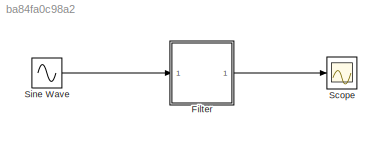
MODEL slx_ba84fa0c98a2
KIND model
CONFIG AbsTol = auto
CONFIG EnableMultiTasking = on
CONFIG FixedStep = auto
CONFIG MaxStep = auto
CONFIG MinStep = auto
CONFIG RelTol = 1e-3
CONFIG SampleTimeConstraint = Unconstrained
CONFIG Solver = FixedStepDiscrete
CONFIG SolverName = FixedStepDiscrete
CONFIG StartTime = 0.0
CONFIG StopTime = 150
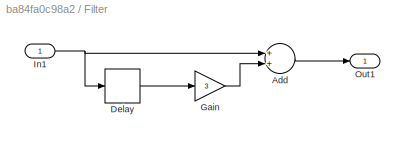
BLOCK [SubSystem] Filter
  Ports = [1, 1]
  RequestExecContextInheritance = off
BLOCK [Sum] Filter/Add
  InputSameDT = off
  OutDataTypeStr = Inherit: Inherit via internal rule
  Ports = [2, 1]
  SaturateOnIntegerOverflow = off
BLOCK [Delay] Filter/Delay
  DelayLength = 1
  InitialCondition = 0
  InputPortMap = u0
  Ports = [1, 1]
BLOCK [Gain] Filter/Gain
  Gain = 3
  OutDataTypeStr = Inherit: Inherit via internal rule
  ParamDataTypeStr = Inherit: Inherit via internal rule
  SaturateOnIntegerOverflow = off
BLOCK [Inport] Filter/In1
  IconDisplay = Port number
BLOCK [Outport] Filter/Out1
  IconDisplay = Port number
BLOCK [Scope] Scope
  Floating = off
  NumInputPorts = 1
  Ports = [1]
  ScopeSpecificationString = Simulink.scopes.TimeScopeBlockCfg('CurrentConfiguration', extmgr.ConfigurationSet(extmgr.Configuration('Core','General UI',true),extmgr.Configuration('Core','Source UI',true),extmgr.Configuration('Sources','WiredSimulink',true),extmgr.Configuration('Visuals','Time Domain',true,'SerializedDisplays',{struct('MinYLimReal','-4.99013','MaxYLimReal','4.99013','YLabelReal','Amplitude','MinYLimMag','0.000...<+1502ch>
BLOCK [Sin] Sine Wave
  Frequency = 2*pi*(1/150)
  Ports = [0, 1]
  SampleTime = 0
LINE Filter/Add:1 -> Filter/Out1:1
LINE Filter/Delay:1 -> Filter/Gain:1
LINE Filter/Gain:1 -> Filter/Add:2
NET Filter/In1:1 -> Filter/Add:1, Filter/Delay:1
LINE Filter:1 -> Scope:1
LINE Sine Wave:1 -> Filter:1
note: NET lines group one-source signal fan-out (src -> all destinations, sorted); 1:1 wires keep LINE
